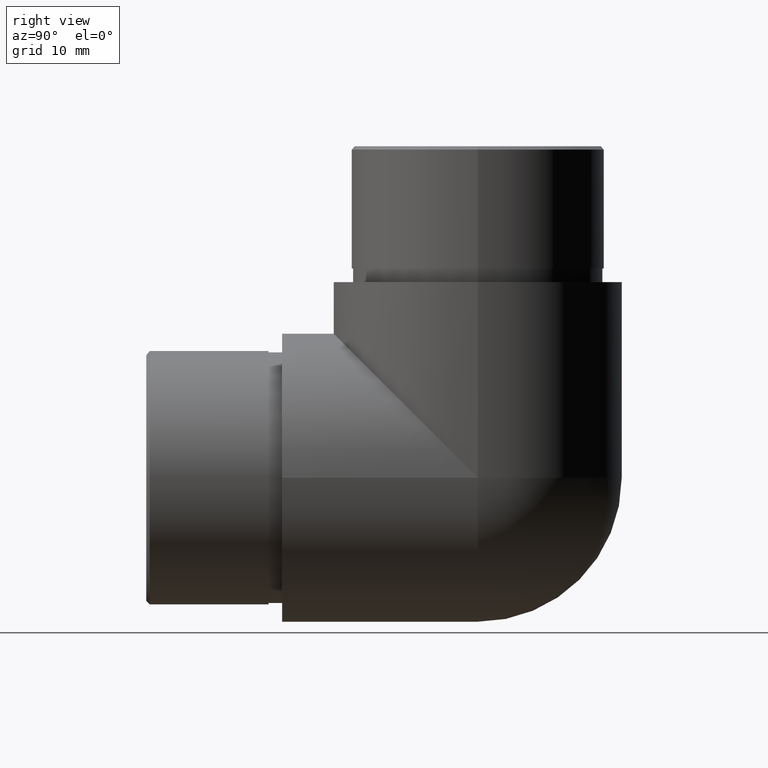
[diagram: clean part render]
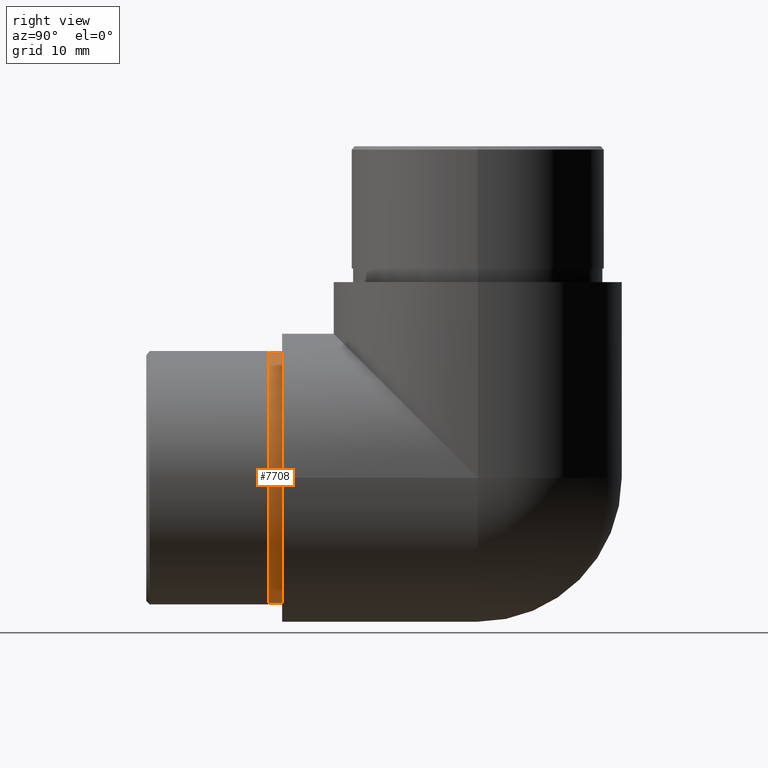
[diagram: same view with one face highlighted and labeled with its STEP entity id]
A machine part, right view. The second image highlights one B-rep face of the part: STEP entity #7708.
In plain terms, the highlighted cylindrical surface (bore or boss wall) has radius 18.45 mm, axis along (-0, 1, -0).
Its self-contained STEP definition (entity closure, byte-faithful):
#511 = FACE_OUTER_BOUND ( 'NONE', #2351, .T. ) ;
#642 = CARTESIAN_POINT ( 'NONE',  ( 3.469446951953614200E-015, 0.0000000000000000000, 39.64999999999999100 ) ) ;
#840 = CIRCLE ( 'NONE', #2540, 18.44999999999999900 ) ;
#1338 = ORIENTED_EDGE ( 'NONE', *, *, #4551, .F. ) ;
#1549 = CARTESIAN_POINT ( 'NONE',  ( 3.469446951953614200E-015, -2.000000000000000000, 2.749999999999999100 ) ) ;
#1829 = CYLINDRICAL_SURFACE ( 'NONE', #9670, 18.44999999999999600 ) ;
#2134 = ORIENTED_EDGE ( 'NONE', *, *, #6388, .T. ) ;
#2351 = EDGE_LOOP ( 'NONE', ( #2134 ) ) ;
#2540 = AXIS2_PLACEMENT_3D ( 'NONE', #3541, #6418, #9212 ) ;
#3541 = CARTESIAN_POINT ( 'NONE',  ( 3.469446951953614200E-015, -2.000000000000000000, 21.19999999999999600 ) ) ;
#3758 = DIRECTION ( 'NONE',  ( 0.0000000000000000000, 0.0000000000000000000, 1.000000000000000000 ) ) ;
#3799 = DIRECTION ( 'NONE',  ( -0.0000000000000000000, 1.000000000000000000, -0.0000000000000000000 ) ) ;
#4551 = EDGE_CURVE ( 'NONE', #10437, #10437, #840, .T. ) ;
#4788 = CARTESIAN_POINT ( 'NONE',  ( 3.469446951953614200E-015, -2.000000000000000000, 21.19999999999999600 ) ) ;
#5128 = DIRECTION ( 'NONE',  ( 0.0000000000000000000, 0.0000000000000000000, 1.000000000000000000 ) ) ;
#5239 = AXIS2_PLACEMENT_3D ( 'NONE', #8915, #6993, #5128 ) ;
#5550 = FACE_OUTER_BOUND ( 'NONE', #10383, .T. ) ;
#6388 = EDGE_CURVE ( 'NONE', #8205, #8205, #9707, .T. ) ;
#6418 = DIRECTION ( 'NONE',  ( 0.0000000000000000000, -1.000000000000000000, 0.0000000000000000000 ) ) ;
#6993 = DIRECTION ( 'NONE',  ( -0.0000000000000000000, -1.000000000000000000, -0.0000000000000000000 ) ) ;
#7708 = ADVANCED_FACE ( 'NONE', ( #5550, #511 ), #1829, .T. ) ;
#8205 = VERTEX_POINT ( 'NONE', #642 ) ;
#8915 = CARTESIAN_POINT ( 'NONE',  ( 3.469446951953614200E-015, 0.0000000000000000000, 21.19999999999999600 ) ) ;
#9212 = DIRECTION ( 'NONE',  ( 0.0000000000000000000, 0.0000000000000000000, -1.000000000000000000 ) ) ;
#9670 = AXIS2_PLACEMENT_3D ( 'NONE', #4788, #3799, #3758 ) ;
#9707 = CIRCLE ( 'NONE', #5239, 18.44999999999999600 ) ;
#10383 = EDGE_LOOP ( 'NONE', ( #1338 ) ) ;
#10437 = VERTEX_POINT ( 'NONE', #1549 ) ;